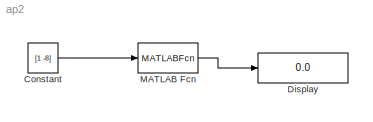
MODEL ap2
KIND model
BLOCK [Constant] Constant
  OutDataType = sfix(16)
  OutScaling = 2^0
  Value = [1 -8]
BLOCK [Display] Display
  Decimation = 1
  Lockdown = off
  Ports = [1]
BLOCK [MATLABFcn] MATLAB Fcn
  MATLABFcn = g(u(1), u(2))
  Ports = [1, 1]
LINE Constant:1 -> MATLAB Fcn:1
LINE MATLAB Fcn:1 -> Display:1
